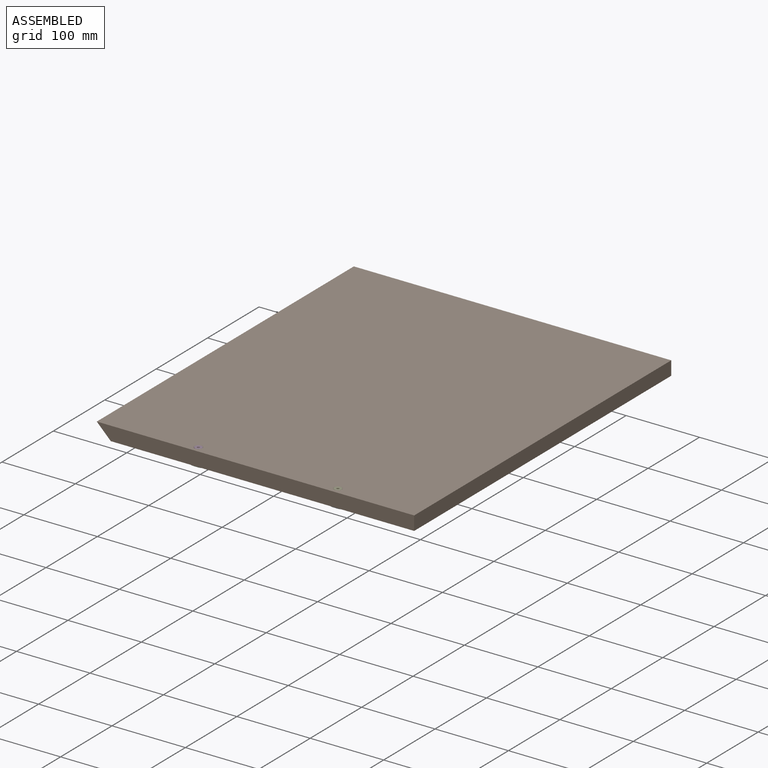
[diagram: assembled view]
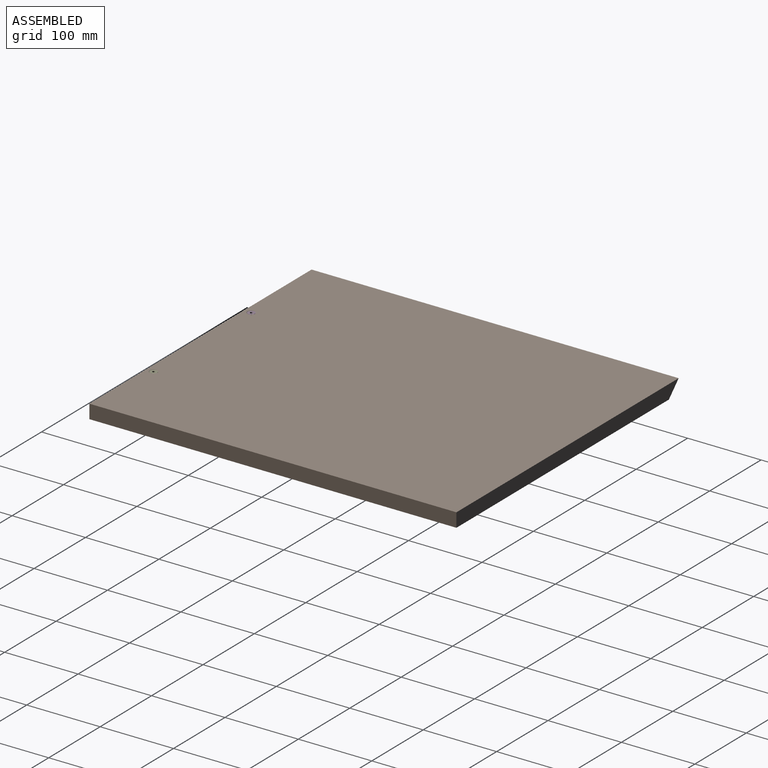
[diagram: assembled view, second angle]
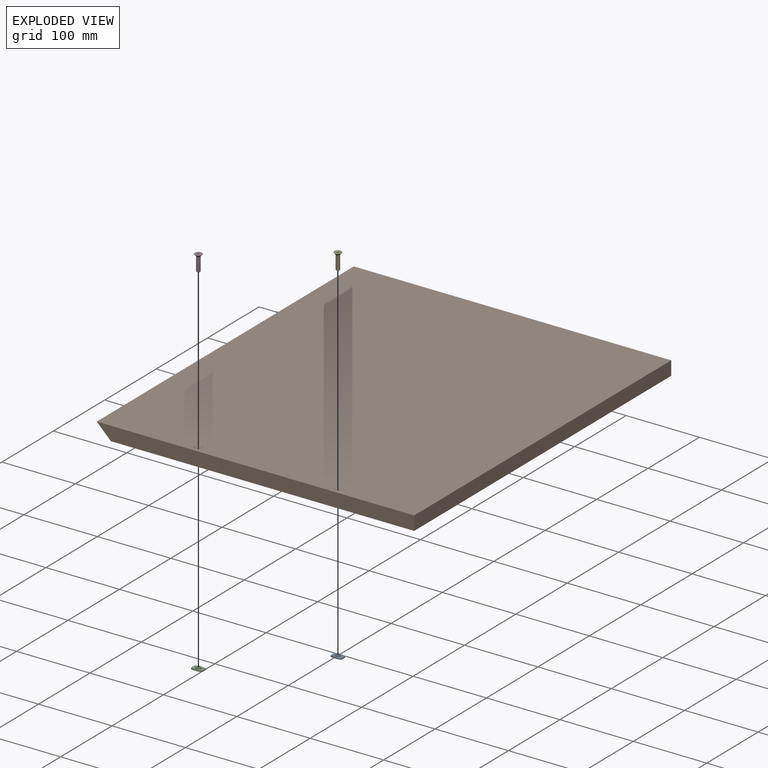
[diagram: exploded view]
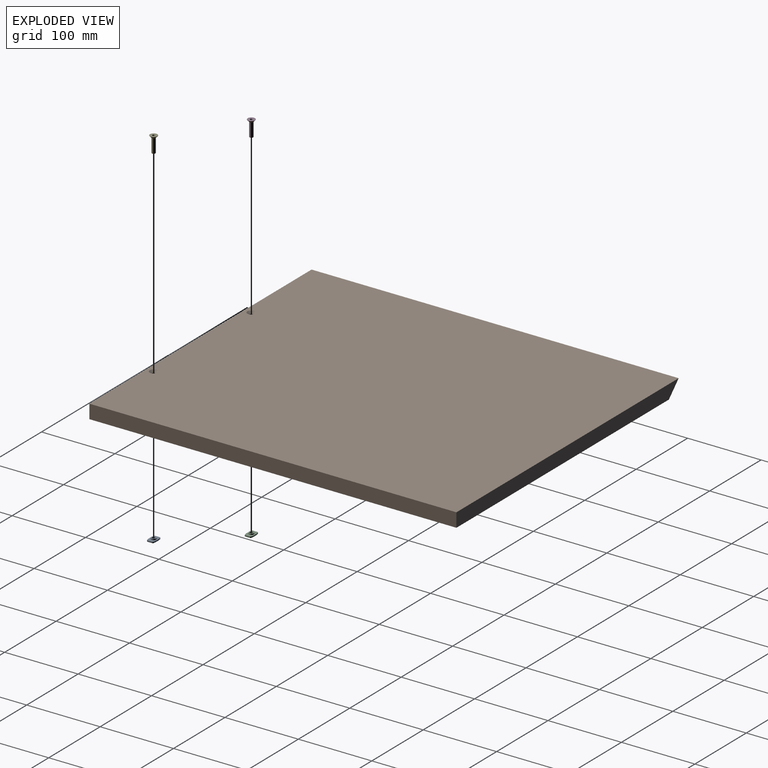
[diagram: exploded view, second angle]
ASSEMBLY  parts=5 mates=4
PART A: 17 faces, bbox 15x10x3 mm
  f0: cylinder r=2.1mm len=4.2mm, axis (0,0,1), area 39.6mm2, adj f15,f16
  f1: cylinder r=3.45mm len=6.9mm, axis (0,0,-1), area 30.3mm2, adj f2,f16
  f2: plane 15x10mm, normal (0,0,1), area 104.8mm2, adj f1,f3,f4,f5,f6,f7,f8,f9
  f3: cylinder r=1.5mm len=1.6mm, axis (0,0,-1), area 3.4mm2, adj f2,f4,f14,f15
  f4: plane 3.24x1.6mm, normal (0.16,0.99,0), area 5.2mm2, adj f2,f3,f5,f15
  f5: plane 6x1.6mm, normal (0,1,0), area 9.6mm2, adj f2,f4,f6,f15
  f6: plane 3.24x1.6mm, normal (-0.16,0.99,0), area 5.2mm2, adj f2,f5,f7,f15
  f7: cylinder r=1.5mm len=1.6mm, axis (0,0,-1), area 3.4mm2, adj f2,f6,f8,f15
  f8: plane 6x1.6mm, normal (-1,0,0), area 9.6mm2, adj f2,f7,f9,f15
  f9: cylinder r=1.5mm len=1.6mm, axis (0,0,-1), area 3.4mm2, adj f2,f8,f10,f15
  f10: plane 3.24x1.6mm, normal (-0.16,-0.99,0), area 5.2mm2, adj f2,f9,f11,f15
  f11: plane 6x1.6mm, normal (0,-1,0), area 9.6mm2, adj f2,f10,f12,f15
  f12: plane 3.24x1.6mm, normal (0.16,-0.99,0), area 5.2mm2, adj f2,f11,f13,f15
  f13: cylinder r=1.5mm len=1.6mm, axis (0,0,-1), area 3.4mm2, adj f2,f12,f14,f15
  f14: plane 6x1.6mm, normal (1,0,0), area 9.6mm2, adj f2,f3,f13,f15
  f15: plane 15x10mm, normal (0,0,-1), area 128.3mm2, adj f0,f3,f4,f5,f6,f7,f8,f9
  f16: plane 6.9x6.9mm, normal (0,0,1), area 23.5mm2, adj f0,f1
PART B: 10 faces, bbox 432.3x500x19.1 mm
  f0: plane 432.29x19.05mm, normal (0,-1,0), area 8053.7mm2, adj f1,f2,f8,f9
  f1: plane 500x432.29mm, normal (0,0,1), area 215954.6mm2, adj f0,f4,f6,f7,f8,f9
  f2: plane 500x413.24mm, normal (0,0,-1), area 206580.4mm2, adj f0,f3,f5,f7,f8,f9
  f3: cylinder r=2.5mm len=16.05mm, axis (0,0,1), area 252.1mm2, adj f2,f4
  f4: cone r=2.5mm half-angle=45deg, axis (0,0,1), area 106.6mm2, adj f1,f3
  f5: cylinder r=2.5mm len=16.05mm, axis (0,0,1), area 252.1mm2, adj f2,f6
  f6: cone r=2.5mm half-angle=45deg, axis (0,0,1), area 106.6mm2, adj f1,f5
  f7: plane 432.29x19.05mm, normal (0,1,0), area 8053.7mm2, adj f1,f2,f8,f9
  f8: plane 500x19.05mm, normal (-0.71,0,-0.71), area 13470.4mm2, adj f0,f1,f2,f7
  f9: plane 500x19.05mm, normal (1,0,0), area 9525mm2, adj f0,f1,f2,f7
PART C: same geometry as A
PART D: 14 faces, bbox 10x10x22 mm
  f0: cone r=0mm half-angle=45deg, axis (0,0,1), area 2.6mm2, adj f6,f7,f8,f9,f10,f11,f12
  f1: plane 4x4mm, normal (0,0,-1), area 12.6mm2, adj f2
  f2: cone r=2.5mm half-angle=45deg, axis (0,0,1), area 10mm2, adj f1,f3
  f3: cylinder r=2.5mm len=18.7mm, axis (0,0,-1), area 293.7mm2, adj f2,f4
  f4: cone r=5mm half-angle=45deg, axis (0,0,1), area 83.3mm2, adj f3,f5
  f5: cylinder r=5mm len=10mm, axis (0,0,-1), area 9.4mm2, adj f4,f6
  f6: plane 10x10mm, normal (0,0,1), area 68.9mm2, adj f0,f5
  f7: plane 2.28x1.5mm, normal (-0.5,-0.87,0), area 3.7mm2, adj f0,f8,f12,f13
  f8: plane 2.28x1.5mm, normal (0.5,-0.87,0), area 3.7mm2, adj f0,f7,f9,f13
  f9: plane 2.28x1.73mm, normal (1,0,0), area 3.7mm2, adj f0,f8,f10,f13
  f10: plane 2.28x1.5mm, normal (0.5,0.87,0), area 3.7mm2, adj f0,f9,f11,f13
  f11: plane 2.28x1.5mm, normal (-0.5,0.87,0), area 3.7mm2, adj f0,f10,f12,f13
  f12: plane 2.28x1.73mm, normal (-1,0,0), area 3.7mm2, adj f0,f7,f11,f13
  f13: plane 3.46x3mm, normal (0,0,1), area 7.8mm2, adj f7,f8,f9,f10,f11,f12
PART E: same geometry as D
PLACE A t=(95.77,-240.05,-3.4)mm
PLACE B t=(-351.23,-250.05,0)mm
PLACE C t=(-94.23,-240.05,-3.4)mm
PLACE D t=(-184.23,-240.05,18.85)mm
PLACE E t=(5.77,-240.05,18.85)mm
MATE fastened E.f0 <-> B.f5  axis (0,0,-1) through (95.77,-240.05,16.05)mm
MATE fastened D.f0 <-> B.f3  axis (0,0,-1) through (-94.23,-240.05,16.05)mm
MATE fastened C.f0 <-> B.f3  axis (0,0,1) through (-94.23,-240.05,-1.8)mm
MATE fastened A.f0 <-> B.f5  axis (0,0,1) through (95.77,-240.05,-1.8)mm
